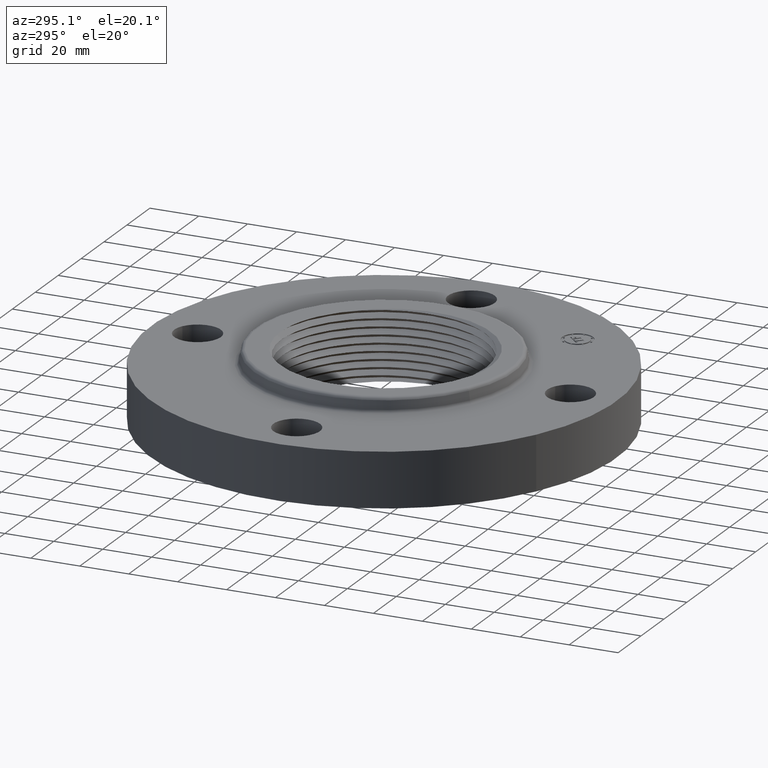
[diagram: clean part render]
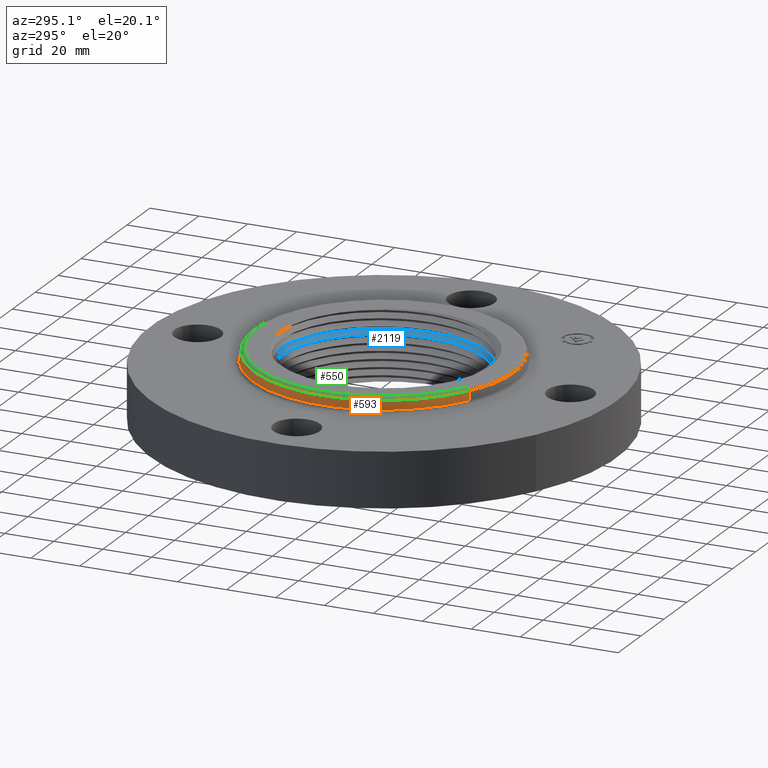
[diagram: same view with three faces highlighted in distinct colors, each labeled with its STEP entity id]
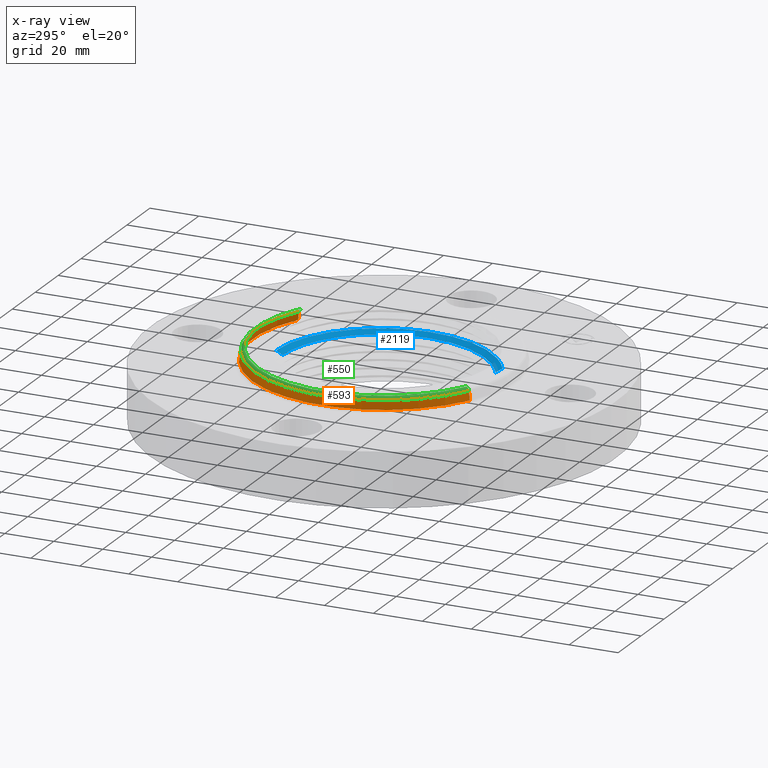
[diagram: x-ray of the same camera — body ghosted, the three highlighted faces saturated]
A machine part, auxiliary view with three faces highlighted in distinct colors.
The next image is the same camera in x-ray (body ghosted, the three faces saturated) — at least one of them is partly hidden behind the body in this view.
Their STEP definitions:

[orange] entity #593 — the highlighted conical surface has half-angle 10 deg.
#527=AXIS2_PLACEMENT_3D('Circle Axis2P3D',#525,#526,$) ;
#566=AXIS2_PLACEMENT_3D('Cone Axis2P3D',#563,#564,#565) ;
#570=AXIS2_PLACEMENT_3D('Circle Axis2P3D',#568,#569,$) ;
#525=CARTESIAN_POINT('Axis2P3D Location',(0.,0.,1.07041889066)) ;
#529=CARTESIAN_POINT('Vertex',(-1.00268208338,-1.8353972424,1.07041889066)) ;
#531=CARTESIAN_POINT('Vertex',(1.00268208338,1.8353972424,1.07041889066)) ;
#563=CARTESIAN_POINT('Axis2P3D Location',(0.,0.,1.07041889066)) ;
#568=CARTESIAN_POINT('Axis2P3D Location',(0.,0.,0.929581109344)) ;
#572=CARTESIAN_POINT('Vertex',(-1.01458789785,-1.85719068961,0.929581109344)) ;
#574=CARTESIAN_POINT('Vertex',(1.01458789785,1.85719068961,0.929581109344)) ;
#577=CARTESIAN_POINT('Line Origine',(-1.00863499061,-1.84629396601,1.)) ;
#582=CARTESIAN_POINT('Line Origine',(1.00863499061,1.84629396601,1.)) ;
#526=DIRECTION('Axis2P3D Direction',(0.,0.,-0.0393700787402)) ;
#564=DIRECTION('Axis2P3D Direction',(0.,0.,-0.0393700787402)) ;
#565=DIRECTION('Axis2P3D XDirection',(0.0188750212049,0.0345504945626,0.)) ;
#569=DIRECTION('Axis2P3D Direction',(0.,0.,-0.0393700787402)) ;
#578=DIRECTION('Vector Direction',(-0.00327761303565,-0.00599963041829,-0.03877195878)) ;
#583=DIRECTION('Vector Direction',(0.00327761303565,0.00599963041829,-0.03877195878)) ;
#579=VECTOR('Line Direction',#578,0.0393700787402) ;
#584=VECTOR('Line Direction',#583,0.0393700787402) ;
#588=ORIENTED_EDGE('',*,*,#576,.F.) ;
#589=ORIENTED_EDGE('',*,*,#581,.T.) ;
#590=ORIENTED_EDGE('',*,*,#533,.T.) ;
#591=ORIENTED_EDGE('',*,*,#586,.F.) ;
#593=ADVANCED_FACE('PartBody',(#592),#567,.T.) ;
#528=CIRCLE('generated circle',#527,2.09142401195) ;
#571=CIRCLE('generated circle',#570,2.1162575127) ;
#567=CONICAL_SURFACE('Cone',#566,2.09142401195,0.174532925199) ;
#533=EDGE_CURVE('',#530,#532,#528,.T.) ;
#576=EDGE_CURVE('',#573,#575,#571,.T.) ;
#581=EDGE_CURVE('',#573,#530,#580,.F.) ;
#586=EDGE_CURVE('',#575,#532,#585,.F.) ;
#587=EDGE_LOOP('',(#588,#589,#590,#591)) ;
#592=FACE_OUTER_BOUND('',#587,.T.) ;
#580=LINE('Line',#577,#579) ;
#585=LINE('Line',#582,#584) ;
#530=VERTEX_POINT('',#529) ;
#532=VERTEX_POINT('',#531) ;
#573=VERTEX_POINT('',#572) ;
#575=VERTEX_POINT('',#574) ;

[blue] entity #2119 — the highlighted face is a freeform B-spline surface patch.
#1914=CARTESIAN_POINT('Vertex',(7.42894419227E-007,1.73250692333,0.81343826316)) ;
#1948=CARTESIAN_POINT('Control Point',(7.42894418253E-007,1.73250692333,0.81343826316)) ;
#1949=CARTESIAN_POINT('Control Point',(0.61117163975,1.73228734784,0.806420191005)) ;
#1950=CARTESIAN_POINT('Control Point',(1.22224911616,1.46256671678,0.799400967797)) ;
#1951=CARTESIAN_POINT('Control Point',(1.66670997578,0.924349644236,0.792452883174)) ;
#1952=CARTESIAN_POINT('Control Point',(1.8903385443,-0.0517693631924,0.781927385608)) ;
#1953=CARTESIAN_POINT('Control Point',(1.51890386164,-0.913243664754,0.771399315517)) ;
#1954=CARTESIAN_POINT('Control Point',(1.33307389447,-1.16774225654,0.767896605276)) ;
#1955=CARTESIAN_POINT('Control Point',(1.09754153327,-1.37284507831,0.764391164696)) ;
#1956=CARTESIAN_POINT('Control Point',(0.829820068137,-1.51897699698,0.760885447095)) ;
#1957=CARTESIAN_POINT('Vertex',(0.829820068137,-1.51897699698,0.760885447095)) ;
#2039=CARTESIAN_POINT('Control Point',(-4.34647757812E-006,1.63192829848,0.754863713611)) ;
#2040=CARTESIAN_POINT('Control Point',(7.42894419173E-007,1.73250692333,0.81343826316)) ;
#2041=CARTESIAN_POINT('Vertex',(-4.34647757806E-006,1.63192829848,0.754863713611)) ;
#2060=CARTESIAN_POINT('Control Point',(-4.41351084924E-006,1.6306035547,0.754092214988)) ;
#2061=CARTESIAN_POINT('Control Point',(7.42894418253E-007,1.73250692333,0.81343826316)) ;
#2062=CARTESIAN_POINT('Control Point',(0.575218263247,1.63038579821,0.747074142848)) ;
#2063=CARTESIAN_POINT('Control Point',(0.61117163975,1.73228734784,0.806420191005)) ;
#2064=CARTESIAN_POINT('Control Point',(1.15034240497,1.37651874334,0.740054909668)) ;
#2065=CARTESIAN_POINT('Control Point',(1.22224911616,1.46256671678,0.799400967797)) ;
#2066=CARTESIAN_POINT('Control Point',(1.56863927903,0.869957951548,0.733106834402)) ;
#2067=CARTESIAN_POINT('Control Point',(1.66670997578,0.924349644236,0.792452883174)) ;
#2068=CARTESIAN_POINT('Control Point',(1.77908686565,-0.0487231846437,0.722581337784)) ;
#2069=CARTESIAN_POINT('Control Point',(1.8903385443,-0.0517693631924,0.781927385608)) ;
#2070=CARTESIAN_POINT('Control Point',(1.4294986753,-0.859483907889,0.712053267239)) ;
#2071=CARTESIAN_POINT('Control Point',(1.51890386164,-0.913243664754,0.771399315517)) ;
#2072=CARTESIAN_POINT('Control Point',(1.254602707,-1.09899782733,0.708550553116)) ;
#2073=CARTESIAN_POINT('Control Point',(1.33307389447,-1.16774225654,0.767896605276)) ;
#2074=CARTESIAN_POINT('Control Point',(1.03293226983,-1.29202182963,0.705045116582)) ;
#2075=CARTESIAN_POINT('Control Point',(1.09754153327,-1.37284507831,0.764391164696)) ;
#2076=CARTESIAN_POINT('Control Point',(0.780970149772,-1.42954555927,0.701539398986)) ;
#2077=CARTESIAN_POINT('Control Point',(0.829820068137,-1.51897699698,0.760885447095)) ;
#2079=CARTESIAN_POINT('Control Point',(0.781605198707,-1.43070816796,0.702310897607)) ;
#2080=CARTESIAN_POINT('Control Point',(0.829820068137,-1.51897699698,0.760885447095)) ;
#2081=CARTESIAN_POINT('Vertex',(0.781605198707,-1.43070816796,0.702310897607)) ;
#2085=CARTESIAN_POINT('Control Point',(0.781605198707,-1.43070816796,0.702310897607)) ;
#2086=CARTESIAN_POINT('Control Point',(0.893560906526,-1.36960145861,0.703867346738)) ;
#2087=CARTESIAN_POINT('Control Point',(0.999542858597,-1.29754491445,0.705423765558)) ;
#2088=CARTESIAN_POINT('Control Point',(1.1001613703,-1.21404231053,0.707008731587)) ;
#2089=CARTESIAN_POINT('Control Point',(1.28439575725,-1.02571284525,0.710207136273)) ;
#2090=CARTESIAN_POINT('Control Point',(1.42748074211,-0.804490457794,0.713405418374)) ;
#2091=CARTESIAN_POINT('Control Point',(1.48675135753,-0.68793607124,0.714990261585)) ;
#2092=CARTESIAN_POINT('Control Point',(1.5971583965,-0.407335941551,0.718651719746)) ;
#2093=CARTESIAN_POINT('Control Point',(1.64117237724,-0.107792694679,0.722313042407)) ;
#2094=CARTESIAN_POINT('Control Point',(1.64339887608,0.06679478137,0.72441200605)) ;
#2095=CARTESIAN_POINT('Control Point',(1.61217066933,0.325431235346,0.727556851713)) ;
#2096=CARTESIAN_POINT('Control Point',(1.53150336036,0.571219369741,0.730708021795)) ;
#2097=CARTESIAN_POINT('Control Point',(1.49926221322,0.651341860953,0.731760075977)) ;
#2098=CARTESIAN_POINT('Control Point',(1.42416320722,0.807123391434,0.733868528086)) ;
#2099=CARTESIAN_POINT('Control Point',(1.32922386404,0.951642012345,0.735975384758)) ;
#2100=CARTESIAN_POINT('Control Point',(1.27711902198,1.02048838946,0.737025842516)) ;
#2101=CARTESIAN_POINT('Control Point',(1.16469046633,1.15042931696,0.739115664985)) ;
#2102=CARTESIAN_POINT('Control Point',(1.0362155357,1.26455918109,0.741202921059)) ;
#2103=CARTESIAN_POINT('Control Point',(0.968058532053,1.31755981388,0.74225048833)) ;
#2104=CARTESIAN_POINT('Control Point',(0.824778283364,1.41439344965,0.744350935143)) ;
#2105=CARTESIAN_POINT('Control Point',(0.669941655278,1.49154925411,0.746454935933)) ;
#2106=CARTESIAN_POINT('Control Point',(0.590214617432,1.52484866234,0.747506058511)) ;
#2107=CARTESIAN_POINT('Control Point',(0.427182552295,1.58072547558,0.749606416483)) ;
#2108=CARTESIAN_POINT('Control Point',(0.258148862217,1.61474611254,0.751708505491)) ;
#2109=CARTESIAN_POINT('Control Point',(0.172444023987,1.62616819401,0.752761391703)) ;
#2110=CARTESIAN_POINT('Control Point',(0.0862214684123,1.63189567976,0.753812559367)) ;
#2111=CARTESIAN_POINT('Control Point',(-4.34647758125E-006,1.63192829848,0.754863713611)) ;
#2114=ORIENTED_EDGE('',*,*,#2083,.F.) ;
#2115=ORIENTED_EDGE('',*,*,#1959,.F.) ;
#2116=ORIENTED_EDGE('',*,*,#2043,.T.) ;
#2117=ORIENTED_EDGE('',*,*,#2112,.F.) ;
#2119=ADVANCED_FACE('PartBody',(#2118),#2059,.T.) ;
#1947=B_SPLINE_CURVE_WITH_KNOTS('',5,(#1948,#1949,#1950,#1951,#1952,#1953,#1954,#1955,#1956),.UNSPECIFIED.,.F.,.U.,(6,3,6),(0.,75.4182695736,113.055008691),.UNSPECIFIED.) ;
#2038=B_SPLINE_CURVE_WITH_KNOTS('',1,(#2039,#2040),.UNSPECIFIED.,.F.,.U.,(2,2),(-1.45870574777,1.49764450472),.UNSPECIFIED.) ;
#2078=B_SPLINE_CURVE_WITH_KNOTS('',1,(#2079,#2080),.UNSPECIFIED.,.F.,.U.,(2,2),(-1.45870574783,1.49764450472),.UNSPECIFIED.) ;
#2084=B_SPLINE_CURVE_WITH_KNOTS('',5,(#2085,#2086,#2087,#2088,#2089,#2090,#2091,#2092,#2093,#2094,#2095,#2096,#2097,#2098,#2099,#2100,#2101,#2102,#2103,#2104,#2105,#2106,#2107,#2108,#2109,#2110,#2111),.UNSPECIFIED.,.F.,.U.,(6,3,3,3,3,3,3,3,6),(0.,23.5649174453,47.1298348905,79.0068787448,94.8719009989,110.736923253,126.597480285,142.458037318,158.380512204),.UNSPECIFIED.) ;
#2059=B_SPLINE_SURFACE_WITH_KNOTS('',5,1,((#2060,#2061),(#2062,#2063),(#2064,#2065),(#2066,#2067),(#2068,#2069),(#2070,#2071),(#2072,#2073),(#2074,#2075),(#2076,#2077)),.UNSPECIFIED.,.F.,.F.,.U.,(6,3,6),(2,2),(0.,75.4182695736,113.055008691),(-1.49764450472,1.49764450472),.UNSPECIFIED.) ;
#1959=EDGE_CURVE('',#1915,#1958,#1947,.T.) ;
#2043=EDGE_CURVE('',#1915,#2042,#2038,.F.) ;
#2083=EDGE_CURVE('',#1958,#2082,#2078,.F.) ;
#2112=EDGE_CURVE('',#2082,#2042,#2084,.T.) ;
#2113=EDGE_LOOP('',(#2114,#2115,#2116,#2117)) ;
#2118=FACE_OUTER_BOUND('',#2113,.T.) ;
#1915=VERTEX_POINT('',#1914) ;
#1958=VERTEX_POINT('',#1957) ;
#2042=VERTEX_POINT('',#2041) ;
#2082=VERTEX_POINT('',#2081) ;

[green] entity #550 — the highlighted toroidal blend (fillet) surface has major radius 51.6213 mm and minor (blend) radius 1.524 mm.
#268=AXIS2_PLACEMENT_3D('Circle Axis2P3D',#266,#267,$) ;
#523=AXIS2_PLACEMENT_3D('Torus Axis2P3D',#520,#521,#522) ;
#527=AXIS2_PLACEMENT_3D('Circle Axis2P3D',#525,#526,$) ;
#536=AXIS2_PLACEMENT_3D('Circle Axis2P3D',#534,#535,$) ;
#541=AXIS2_PLACEMENT_3D('Circle Axis2P3D',#539,#540,$) ;
#261=CARTESIAN_POINT('Vertex',(0.974353564133,1.78354223575,1.12)) ;
#263=CARTESIAN_POINT('Vertex',(-0.974353564133,-1.78354223575,1.12)) ;
#266=CARTESIAN_POINT('Axis2P3D Location',(0.,0.,1.12)) ;
#520=CARTESIAN_POINT('Axis2P3D Location',(0.,0.,1.06)) ;
#525=CARTESIAN_POINT('Axis2P3D Location',(0.,0.,1.07041889066)) ;
#529=CARTESIAN_POINT('Vertex',(-1.00268208338,-1.8353972424,1.07041889066)) ;
#531=CARTESIAN_POINT('Vertex',(1.00268208338,1.8353972424,1.07041889066)) ;
#534=CARTESIAN_POINT('Axis2P3D Location',(-0.974353564133,-1.78354223575,1.06)) ;
#539=CARTESIAN_POINT('Axis2P3D Location',(0.974353564133,1.78354223575,1.06)) ;
#267=DIRECTION('Axis2P3D Direction',(0.,0.,-0.0393700787402)) ;
#521=DIRECTION('Axis2P3D Direction',(0.,0.,-0.0393700787402)) ;
#522=DIRECTION('Axis2P3D XDirection',(0.0188750212049,0.0345504945626,0.)) ;
#526=DIRECTION('Axis2P3D Direction',(0.,0.,-0.0393700787402)) ;
#535=DIRECTION('Axis2P3D Direction',(0.0345504945626,-0.0188750212049,0.)) ;
#540=DIRECTION('Axis2P3D Direction',(-0.0345504945626,0.0188750212049,0.)) ;
#545=ORIENTED_EDGE('',*,*,#533,.F.) ;
#546=ORIENTED_EDGE('',*,*,#538,.T.) ;
#547=ORIENTED_EDGE('',*,*,#270,.T.) ;
#548=ORIENTED_EDGE('',*,*,#543,.F.) ;
#550=ADVANCED_FACE('PartBody',(#549),#524,.T.) ;
#269=CIRCLE('generated circle',#268,2.03233554677) ;
#528=CIRCLE('generated circle',#527,2.09142401195) ;
#537=CIRCLE('generated circle',#536,0.0600000000002) ;
#542=CIRCLE('generated circle',#541,0.0600000000002) ;
#524=TOROIDAL_SURFACE('homeo Torus',#523,2.03233554677,0.0600000000002) ;
#270=EDGE_CURVE('',#264,#262,#269,.T.) ;
#533=EDGE_CURVE('',#530,#532,#528,.T.) ;
#538=EDGE_CURVE('',#530,#264,#537,.F.) ;
#543=EDGE_CURVE('',#532,#262,#542,.F.) ;
#544=EDGE_LOOP('',(#545,#546,#547,#548)) ;
#549=FACE_OUTER_BOUND('',#544,.T.) ;
#262=VERTEX_POINT('',#261) ;
#264=VERTEX_POINT('',#263) ;
#530=VERTEX_POINT('',#529) ;
#532=VERTEX_POINT('',#531) ;